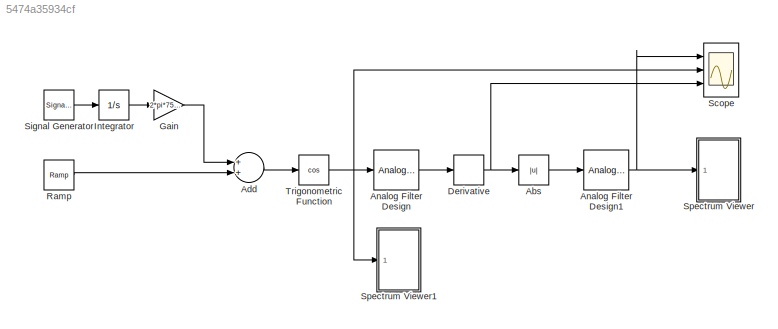
MODEL slx_5474a35934cf
KIND model
CONFIG AbsTol = auto
CONFIG EnableMultiTasking = off
CONFIG FixedStep = 1e-7
CONFIG MaxStep = auto
CONFIG MinStep = auto
CONFIG RelTol = 1e-3
CONFIG SampleTimeConstraint = Unconstrained
CONFIG Solver = FixedStepAuto
CONFIG SolverName = FixedStepAuto
CONFIG StartTime = 0.0
CONFIG StopTime = 0.1
BLOCK [Abs] Abs
  SaturateOnIntegerOverflow = off
BLOCK [Sum] Add
  InputSameDT = off
  OutDataTypeStr = Inherit: Inherit via internal rule
  Ports = [2, 1]
  SaturateOnIntegerOverflow = off
BLOCK [Reference] Analog Filter Design  REF=dsparch4/Analog
Filter Design
  Ports = [1, 1]
  SourceBlock = dsparch4/Analog\nFilter Design
  SourceProductBaseCode = DS
  SourceProductName = DSP System Toolbox
  SourceType = Analog Filter Design
BLOCK [Reference] Analog Filter Design1  REF=dsparch4/Analog
Filter Design
  Ports = [1, 1]
  SourceBlock = dsparch4/Analog\nFilter Design
  SourceProductBaseCode = DS
  SourceProductName = DSP System Toolbox
  SourceType = Analog Filter Design
BLOCK [Derivative] Derivative
BLOCK [Gain] Gain
  Gain = 2*pi*75e3
  OutDataTypeStr = Inherit: Inherit via internal rule
  ParamDataTypeStr = Inherit: Inherit via internal rule
  SaturateOnIntegerOverflow = off
BLOCK [Integrator] Integrator
  Ports = [1, 1]
BLOCK [Reference] Ramp  REF=simulink/Sources/Ramp
  Ports = [0, 1]
  SourceBlock = simulink/Sources/Ramp
  SourceProductBaseCode = SL
  SourceProductName = Simulink
  SourceType = Ramp
BLOCK [Scope] Scope
  Floating = off
  NumInputPorts = 3
  Ports = [3]
  ScopeSpecificationString = Simulink.scopes.TimeScopeBlockCfg('CurrentConfiguration', extmgr.ConfigurationSet(extmgr.Configuration('Core','General UI',true),extmgr.Configuration('Core','Source UI',true),extmgr.Configuration('Sources','WiredSimulink',true),extmgr.Configuration('Visuals','Time Domain',true,'SerializedDisplays',{struct('MinYLimReal','-1.95511','MaxYLimReal','1.76717','YLabelReal','','MinYLimMag','0.00000','MaxY...<+1825ch>
BLOCK [SignalGenerator] Signal Generator
  Frequency = 10e3
  Ports = [0, 1]
  Units = rad/sec
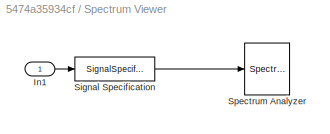
BLOCK [SubSystem] Spectrum Viewer
  Ports = [1]
  RequestExecContextInheritance = off
BLOCK [Inport] Spectrum Viewer/In1
  IconDisplay = Port number
BLOCK [SignalSpecification] Spectrum Viewer/Signal Specification
  SampleTime = 1e-7
BLOCK [SpectrumAnalyzer] Spectrum Viewer/Spectrum Analyzer
  Ports = [1]
  ScopeSpecificationString = spbscopes.SpectrumAnalyzerBlockCfg('CurrentConfiguration', extmgr.ConfigurationSet(extmgr.Configuration('Core','General UI',true),extmgr.Configuration('Core','Source UI',true),extmgr.Configuration('Sources','WiredSimulink',true),extmgr.Configuration('Sources','SimulinkEvent',false),extmgr.Configuration('Sources','Simulink',false),extmgr.Configuration('Sources','SPTool',false),extmgr.Configuration(...<+3433ch>
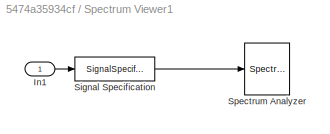
BLOCK [SubSystem] Spectrum Viewer1
  Ports = [1]
  RequestExecContextInheritance = off
BLOCK [Inport] Spectrum Viewer1/In1
  IconDisplay = Port number
BLOCK [SignalSpecification] Spectrum Viewer1/Signal Specification
  SampleTime = 1e-7
BLOCK [SpectrumAnalyzer] Spectrum Viewer1/Spectrum Analyzer
  Ports = [1]
  ScopeSpecificationString = spbscopes.SpectrumAnalyzerBlockCfg('CurrentConfiguration', extmgr.ConfigurationSet(extmgr.Configuration('Core','General UI',true),extmgr.Configuration('Core','Source UI',true),extmgr.Configuration('Sources','WiredSimulink',true),extmgr.Configuration('Sources','SimulinkEvent',false),extmgr.Configuration('Sources','Simulink',false),extmgr.Configuration('Sources','SPTool',false),extmgr.Configuration(...<+3450ch>
BLOCK [Trigonometry] Trigonometric Function
  Operator = cos
  Ports = [1, 1]
LINE Abs:1 -> Analog Filter Design1:1
LINE Add:1 -> Trigonometric Function:1
NET Analog Filter Design1:1 -> Scope:1, Spectrum Viewer:1
LINE Analog Filter Design:1 -> Derivative:1
NET Derivative:1 -> Abs:1, Scope:3
LINE Gain:1 -> Add:1
LINE Integrator:1 -> Gain:1
LINE Ramp:1 -> Add:2
LINE Signal Generator:1 -> Integrator:1
LINE Spectrum Viewer/In1:1 -> Spectrum Viewer/Signal Specification:1
LINE Spectrum Viewer/Signal Specification:1 -> Spectrum Viewer/Spectrum Analyzer:1
LINE Spectrum Viewer1/In1:1 -> Spectrum Viewer1/Signal Specification:1
LINE Spectrum Viewer1/Signal Specification:1 -> Spectrum Viewer1/Spectrum Analyzer:1
NET Trigonometric Function:1 -> Analog Filter Design:1, Scope:2, Spectrum Viewer1:1
note: NET lines group one-source signal fan-out (src -> all destinations, sorted); 1:1 wires keep LINE
